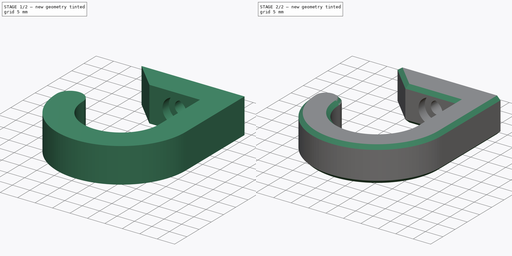
[diagram: build sequence overview — one tinted view per stage of 2, left to right]
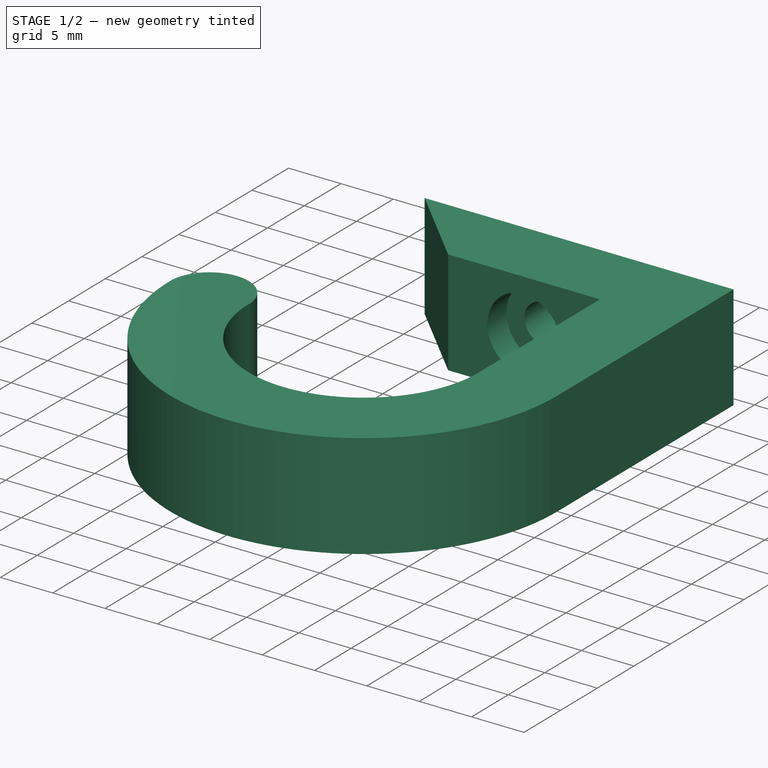
[diagram: stage 1 of 2 — iso view after this stage's code; geometry added in this stage tinted green]
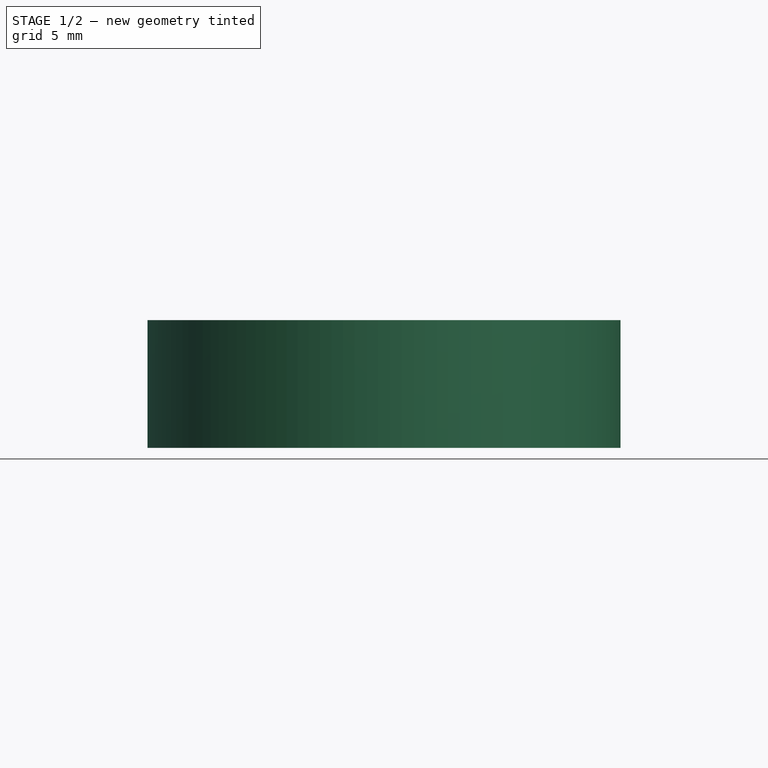
[diagram: stage 1 of 2 — front view after this stage's code; geometry added in this stage tinted green]
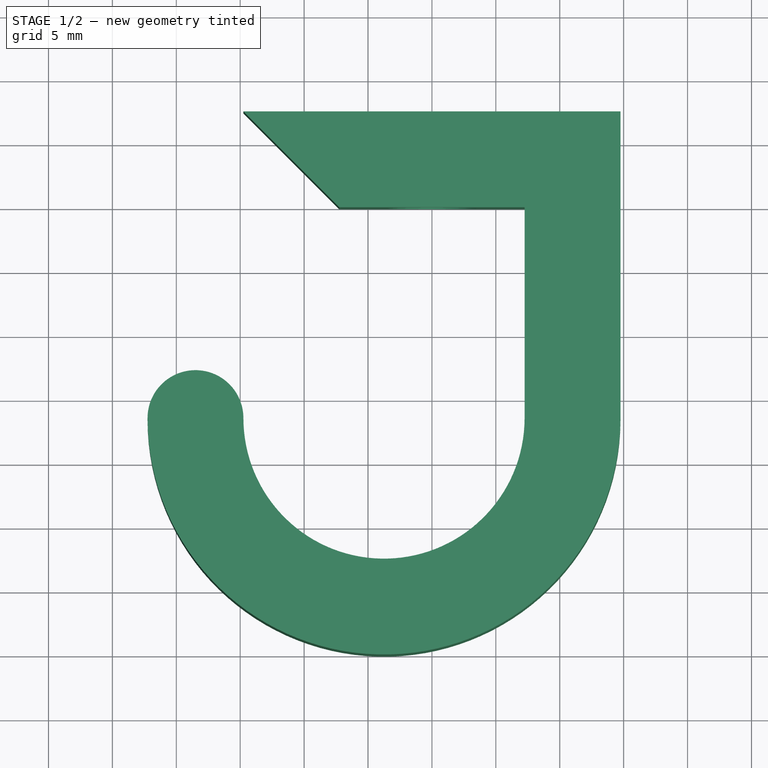
[diagram: stage 1 of 2 — top view after this stage's code; geometry added in this stage tinted green]
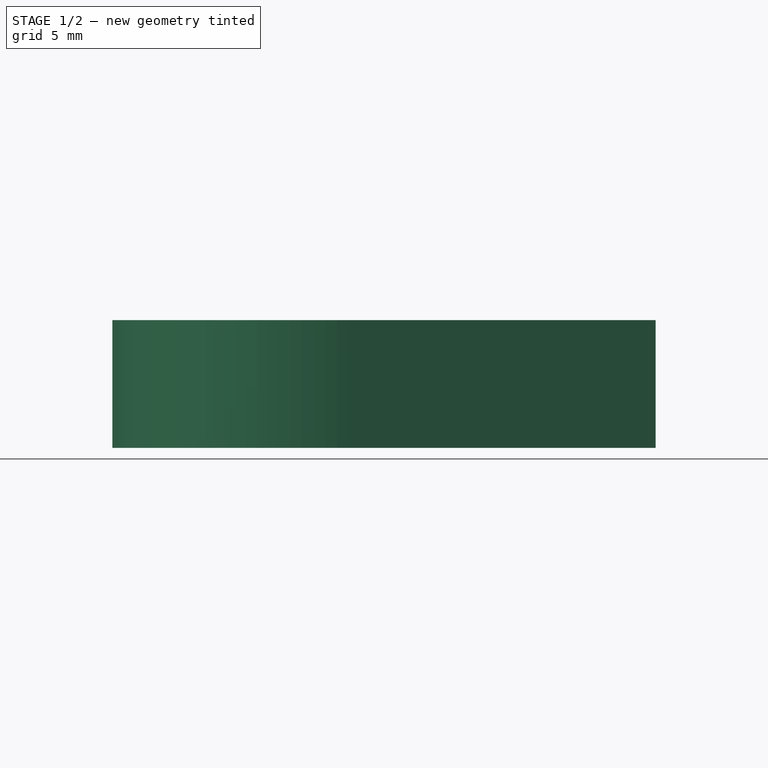
[diagram: stage 1 of 2 — right view after this stage's code; geometry added in this stage tinted green]
FCSTD DOCUMENT  (FreeCAD 0.19R23463 (Git))
Label: topflappen_haken
License: All rights reserved
LicenseURL: http://en.wikipedia.org/wiki/All_rights_reserved
objects: Sketcher::SketchObject×2, PartDesign::Pad×1, PartDesign::Hole×1, PartDesign::Chamfer×1, PartDesign::Body×1
note: 9 computed .brp shape members not serialized (recipe doc carries the construction recipe); baked Part::Feature solids carry a one-line shape summary decoded from their .brp

FEATURE [Sketcher::SketchObject] Sketch  label="sk_haken"
  MapMode = 5
  Support = -> [XY_Plane]
  sketch-geometry (11):
    g0: LineSegment StartX=-14.75 StartY=7.5 StartZ=0 EndX=14.75 EndY=7.5 EndZ=0
    g1: LineSegment StartX=14.75 StartY=7.5 StartZ=0 EndX=14.75 EndY=-16.5 EndZ=0
    g2: ArcOfCircle CenterX=-3.75 CenterY=-16.5 CenterZ=0 NormalX=0 NormalY=0 NormalZ=1 AngleXU=0 Radius=18.5 StartAngle=3.14159 EndAngle=6.28319
    g3: ArcOfCircle CenterX=-18.5 CenterY=-16.5 CenterZ=0 NormalX=0 NormalY=0 NormalZ=1 AngleXU=0 Radius=3.75 StartAngle=-9e-16 EndAngle=3.14159
    g4: ArcOfCircle CenterX=-3.75 CenterY=-16.5 CenterZ=0 NormalX=0 NormalY=0 NormalZ=1 AngleXU=0 Radius=11 StartAngle=3.14159 EndAngle=6.28319
    g5: LineSegment StartX=7.25 StartY=-16.5 StartZ=0 EndX=7.25 EndY=0 EndZ=0
    g6: LineSegment StartX=7.25 StartY=0 StartZ=0 EndX=-7.25 EndY=0 EndZ=0
    g7: LineSegment StartX=-7.25 StartY=0 StartZ=0 EndX=-14.75 EndY=7.5 EndZ=0
    g8: GeomPoint X=-3.75 Y=-27.5 Z=0
    g9: GeomPoint X=0 Y=7.5 Z=0
    g10: GeomPoint X=0 Y=0 Z=0
  constraints (25):
    c: Horizontal(g0)
    c: Coincident(g0,g1)
    c: Vertical(g1)
    c: Tangent(g1,g2) = 1.5708
    c: Tangent(g2,g3) = -1.5708
    c: Tangent(g3,g4) = 1.5708
    c: Tangent(g4,g5) = -1.5708
    c: Vertical(g5)
    c: Coincident(g4,g2)
    c: Coincident(g5,g6)
    c: Horizontal(g6)
    c: Coincident(g6,g7)
    c: Coincident(g7,g0)
    c: Horizontal(g2,g3)
    c: DistanceX(g4,g1) = 7.5
    c: DistanceY(g5,g0) = 7.5
    c: PointOnObject(g8,g4)
    c: Vertical(g8,g2)
    c: DistanceY(g8,g0) = 35
    c: DistanceX(g3,g4) = 22
    c: Vertical(g0,g3)
    c: Symmetric(g0,g0,g9)
    c: Symmetric(g6,g5,g10)
    c: Vertical(g10,g9)
    c: Coincident(g10,g-1)
FEATURE [PartDesign::Pad] Pad  label="haken"
  Direction = (1,1,1)
  Length = 10
  Length2 = 100
  Midplane = true
  Profile = -> Sketch
  Refine = true
  Type = 0
FEATURE [Sketcher::SketchObject] Sketch001  label="sk_bohrung"
  MapMode = 5
  Placement = pos=(0,0,0) rot=(1,0,0;1.5708rad)
  Support = -> [XZ_Plane]
  sketch-geometry (1):
    g0: Circle CenterX=0 CenterY=0 CenterZ=0 NormalX=0 NormalY=0 NormalZ=1 AngleXU=0 Radius=2.27897
  constraints (1):
    c: Coincident(g0,g-1)
FEATURE [PartDesign::Hole] Hole  label="bohrung"
  BaseFeature = -> Pad
  Depth = 25
  DepthType = 0
  Diameter = 3.6
  DrillPoint = 0
  DrillPointAngle = 118
  HoleCutCountersinkAngle = 90
  HoleCutDepth = 2.6
  HoleCutDiameter = 7
  HoleCutType = 1
  ModelActualThread = false
  Profile = -> Sketch001
  Refine = true
  Tapered = false
  TaperedAngle = 90
  ThreadAngle = 0
  ThreadClass = 0
  ThreadCutOffInner = 0
  ThreadCutOffOuter = 0
  ThreadDirection = 0
  ThreadFit = 0
  ThreadPitch = 0
  ThreadSize = 0
  ThreadType = 0
  Threaded = false
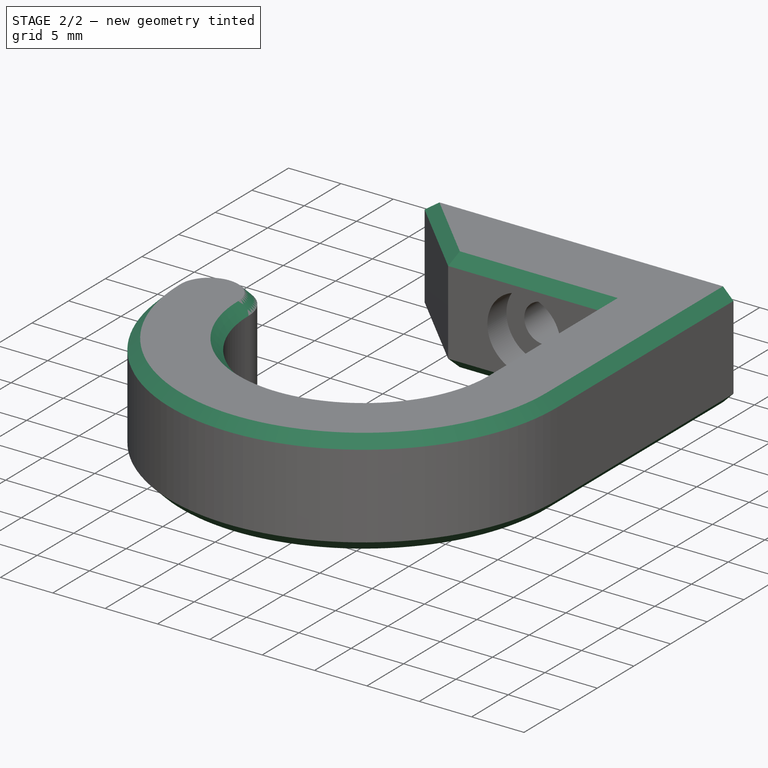
[diagram: stage 2 of 2 — iso view after this stage's code; geometry added in this stage tinted green]
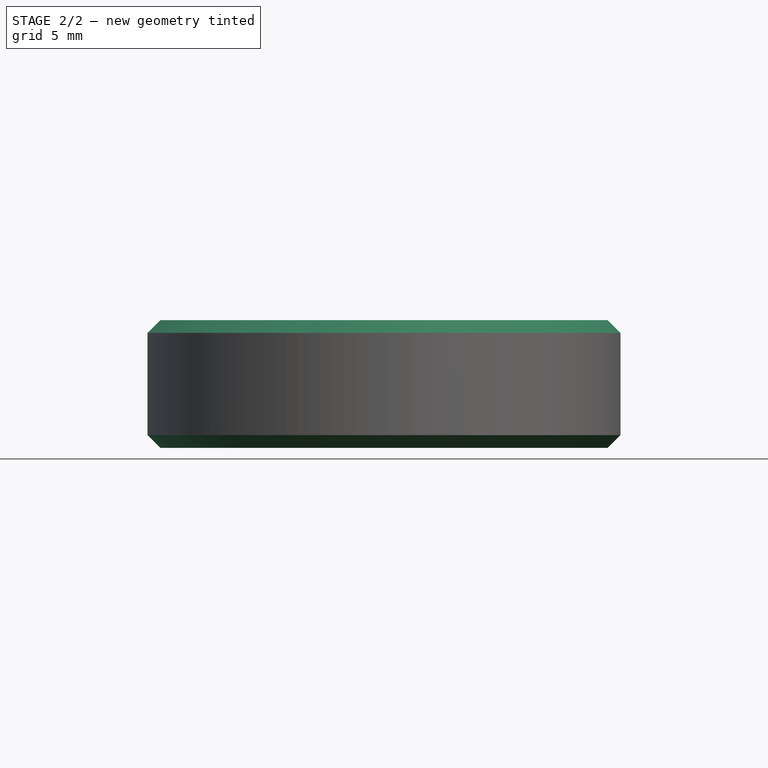
[diagram: stage 2 of 2 — front view after this stage's code; geometry added in this stage tinted green]
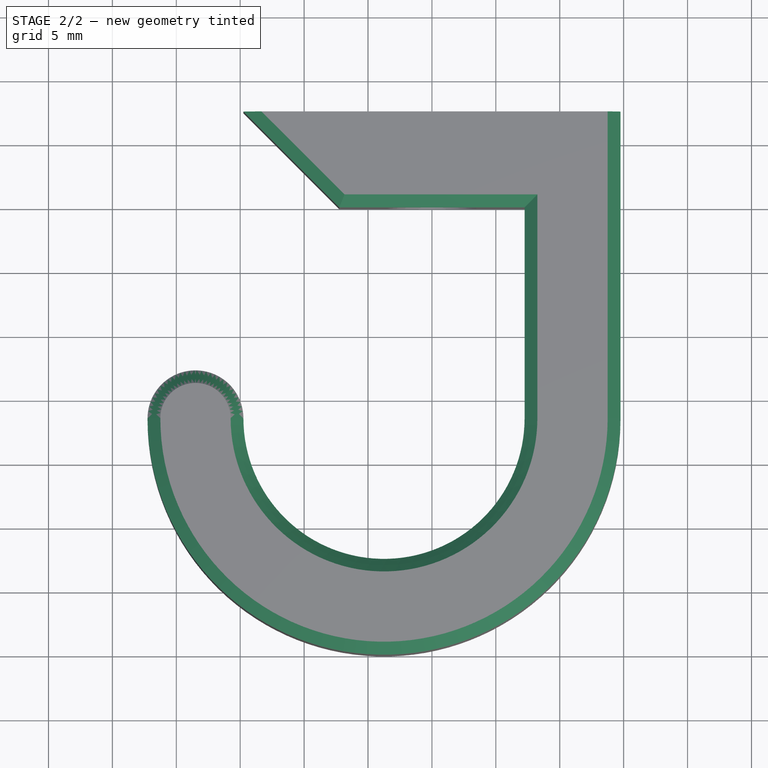
[diagram: stage 2 of 2 — top view after this stage's code; geometry added in this stage tinted green]
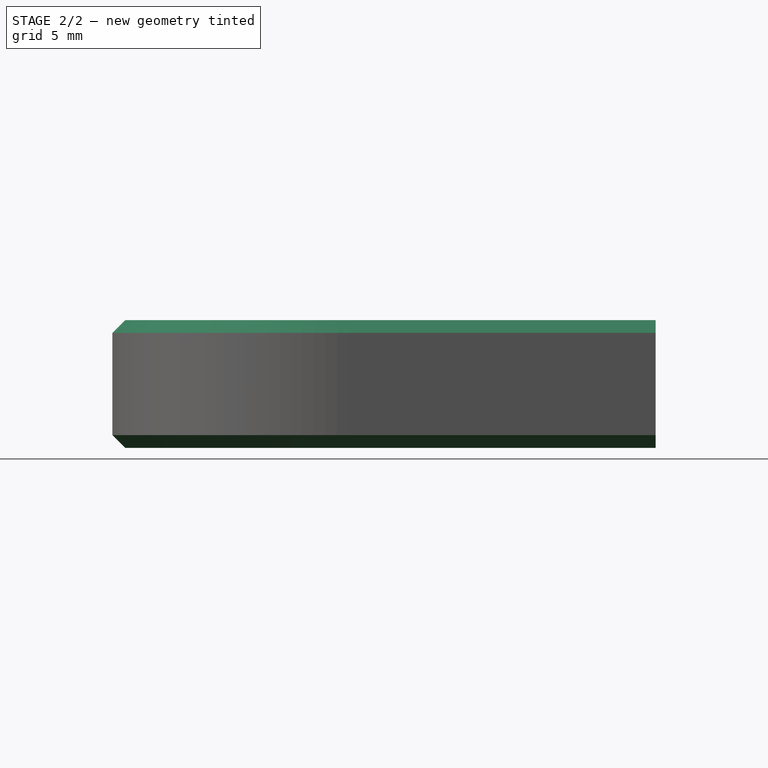
[diagram: stage 2 of 2 — right view after this stage's code; geometry added in this stage tinted green]
FEATURE [PartDesign::Chamfer] Chamfer  label="phase"
  Angle = 45
  Base = -> Hole [Edge18,Edge12,Edge20,Edge7,Edge14,Edge8]
  BaseFeature = -> Hole
  ChamferType = 0
  FlipDirection = false
  Refine = true
  Size = 1
  Size2 = 1
  SupportTransform = false
FEATURE [PartDesign::Body] Body
  Group = -> [Sketch,Pad,Sketch001,Hole,Chamfer]
  Origin = -> Origin
  Tip = -> Chamfer
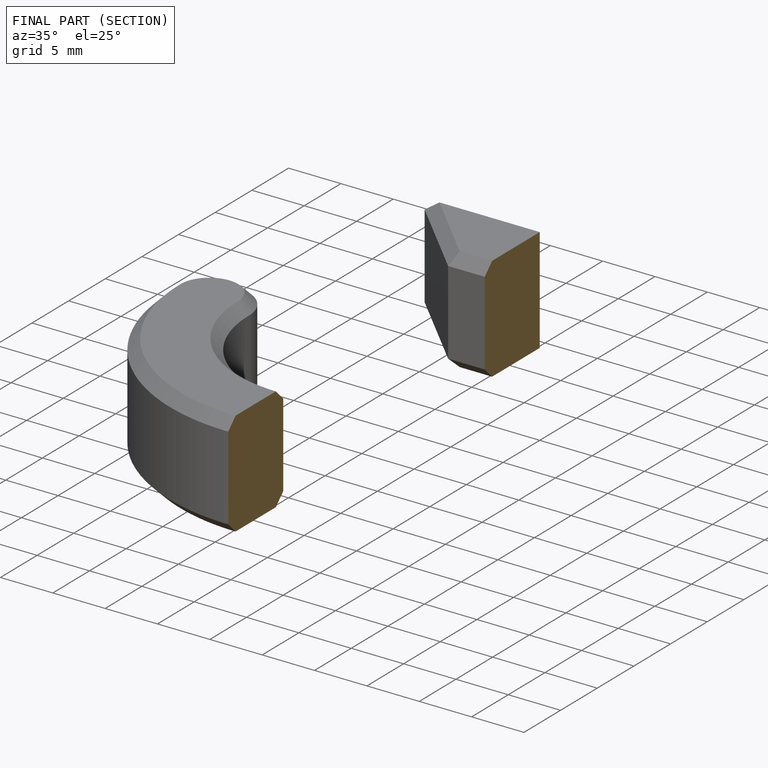
[diagram: finished part — half-section view (interior)]
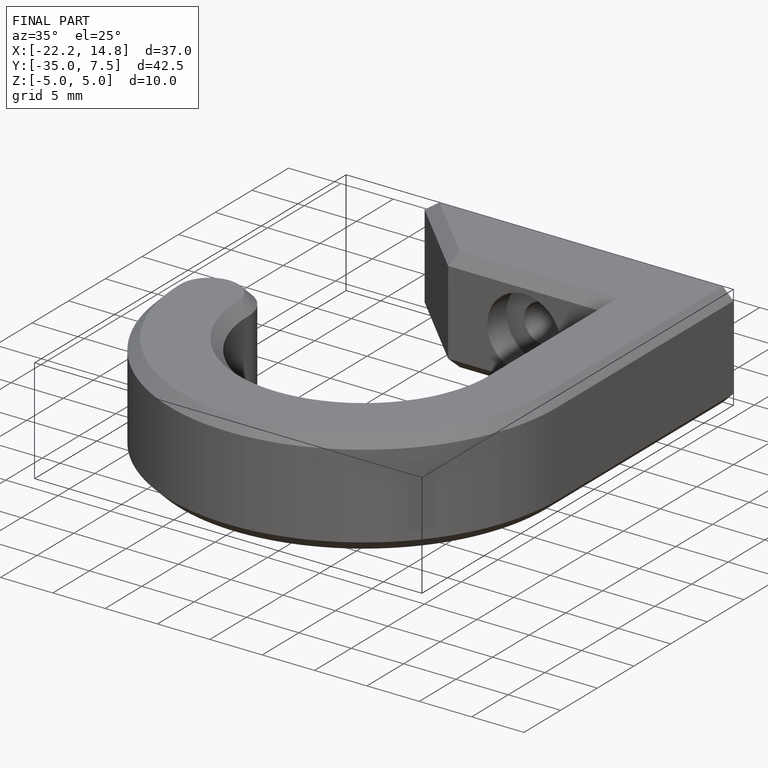
[diagram: finished part — iso view with bounding-box wireframe]
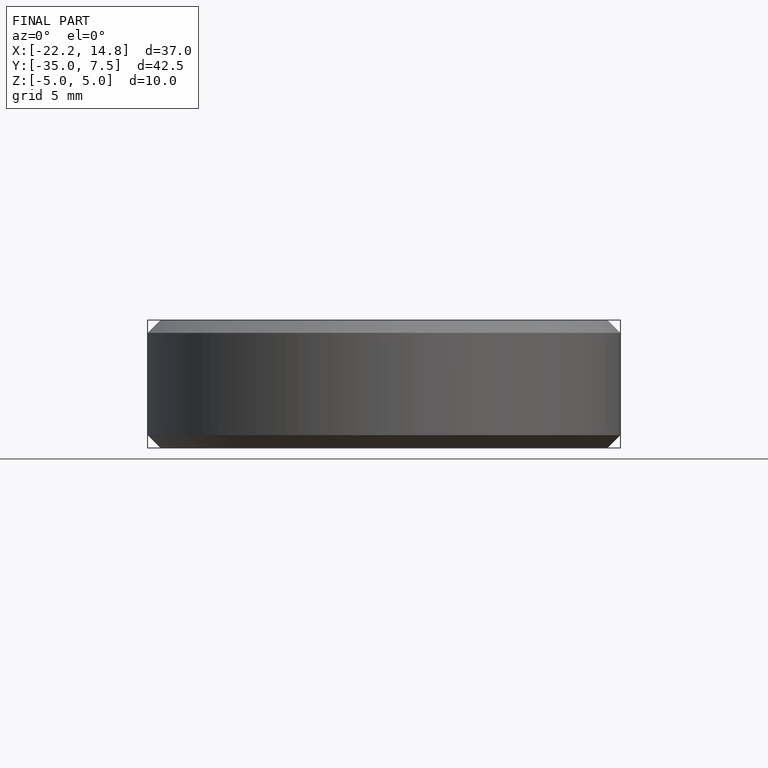
[diagram: finished part — front view with bounding-box wireframe]
